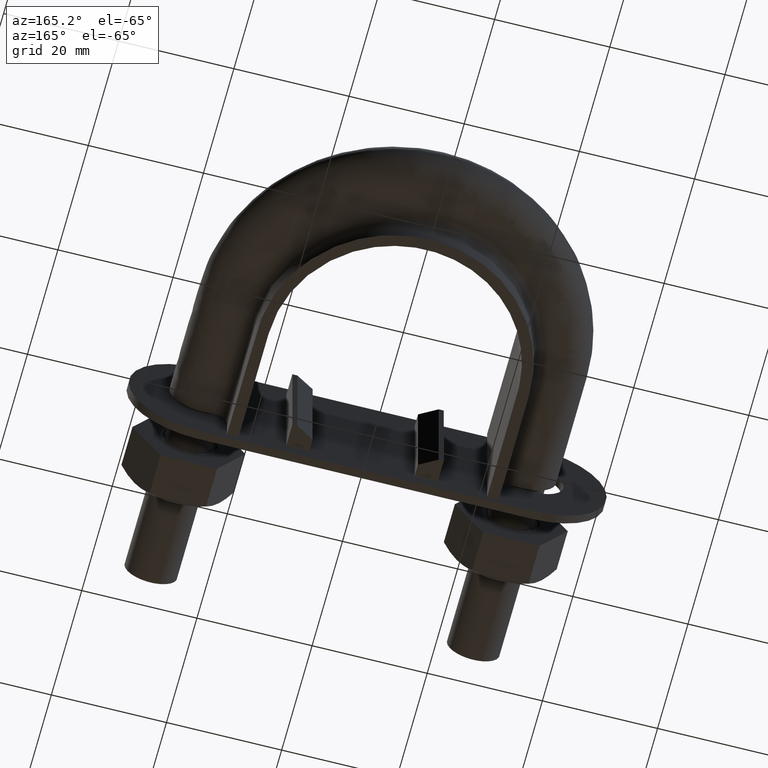
[diagram: clean part render]
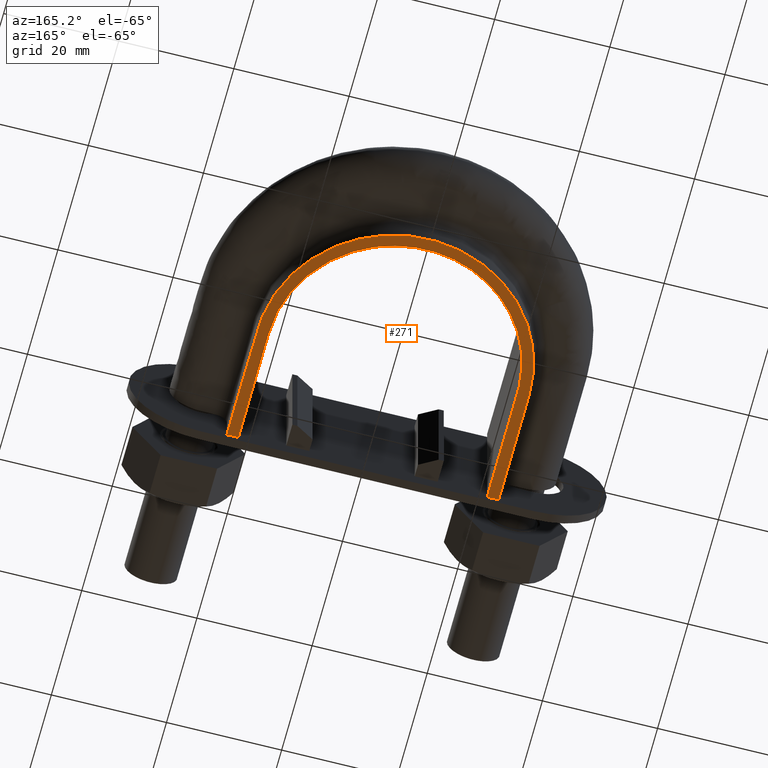
[diagram: same view with one face highlighted and labeled with its STEP entity id]
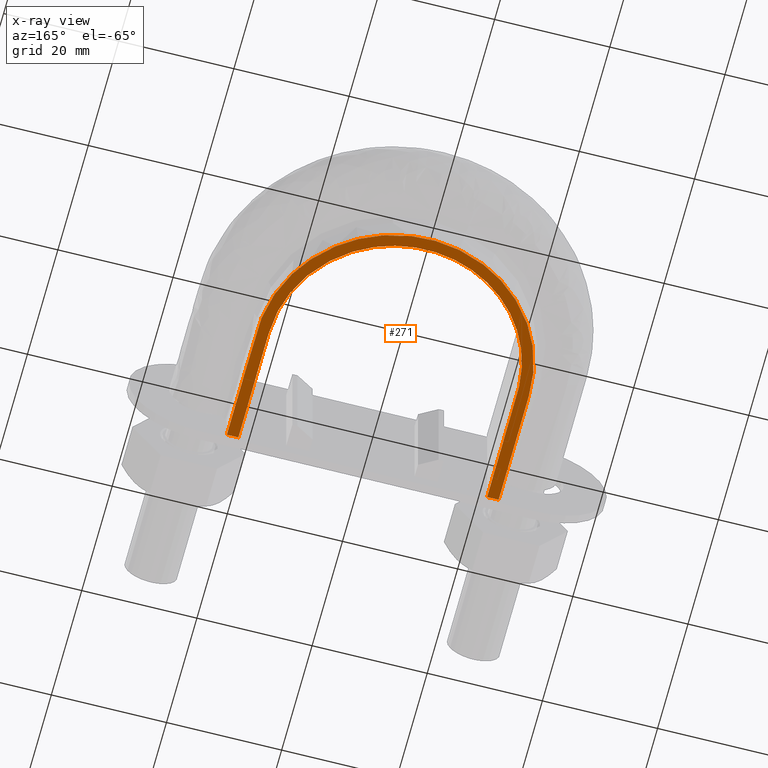
[diagram: x-ray of the same camera — body ghosted, the highlighted face saturated]
A machine part, auxiliary view. The second image highlights one B-rep face of the part: STEP entity #271.
The next image is the same camera in x-ray: the body ghosted, the highlighted face saturated — about 0% of this face is hidden behind the body in this view.
In plain terms, the highlighted planar face has unit normal (0, 0, 1).
Its self-contained STEP definition (entity closure, byte-faithful):
#271 = ADVANCED_FACE( '', ( #391 ), #392, .F. );
#391 = FACE_OUTER_BOUND( '', #649, .T. );
#392 = PLANE( '', #650 );
#649 = EDGE_LOOP( '', ( #1765, #1766, #1767, #1768 ) );
#650 = AXIS2_PLACEMENT_3D( '', #1769, #1770, #1771 );
#1765 = ORIENTED_EDGE( '', *, *, #2555, .F. );
#1766 = ORIENTED_EDGE( '', *, *, #2549, .F. );
#1767 = ORIENTED_EDGE( '', *, *, #2558, .T. );
#1768 = ORIENTED_EDGE( '', *, *, #2553, .F. );
#1769 = CARTESIAN_POINT( '', ( 40.0000000000000, 93.3000000000000, -12.5000000000000 ) );
#1770 = DIRECTION( '', ( 0.000000000000000, 0.000000000000000, 1.00000000000000 ) );
#1771 = DIRECTION( '', ( 1.22460635382238E-016, 1.00000000000000, 0.000000000000000 ) );
#2549 = EDGE_CURVE( '', #2792, #2788, #2794, .T. );
#2553 = EDGE_CURVE( '', #2800, #2802, #2803, .T. );
#2555 = EDGE_CURVE( '', #2788, #2800, #2805, .F. );
#2558 = EDGE_CURVE( '', #2792, #2802, #2808, .T. );
#2788 = VERTEX_POINT( '', #3195 );
#2792 = VERTEX_POINT( '', #3201 );
#2794 = LINE( '', #3233, #3234 );
#2800 = VERTEX_POINT( '', #3250 );
#2802 = VERTEX_POINT( '', #3253 );
#2803 = LINE( '', #3254, #3255 );
#2805 = B_SPLINE_CURVE_WITH_KNOTS( '', 3, ( #3287, #3288, #3289, #3290, #3291, #3292, #3293, #3294, #3295, #3296, #3297, #3298, #3299, #3300, #3301, #3302, #3303 ), .UNSPECIFIED., .F., .F., ( 4, 3, 1, 1, 1, 1, 1, 1, 1, 3, 4 ), ( -7.87012987012987, -7.00000000000000, -6.50000000000000, -6.00000000000000, -5.00000000000000, -4.00000000000000, -3.00000000000000, -2.00000000000000, -1.50000000000000, -1.00000000000000, -0.129870129870130 ), .UNSPECIFIED. );
#2808 = B_SPLINE_CURVE_WITH_KNOTS( '', 3, ( #3391, #3392, #3393, #3394, #3395, #3396, #3397, #3398, #3399, #3400, #3401, #3402, #3403, #3404, #3405, #3406, #3407 ), .UNSPECIFIED., .F., .F., ( 4, 3, 1, 1, 1, 1, 1, 1, 1, 3, 4 ), ( 0.129870129870130, 1.00000000000000, 1.50000000000000, 2.00000000000000, 3.00000000000000, 4.00000000000000, 5.00000000000000, 6.00000000000000, 6.50000000000000, 7.00000000000000, 7.87012987012987 ), .UNSPECIFIED. );
#3195 = CARTESIAN_POINT( '', ( -21.6000000000000, 33.3000000000000, -12.5000000000000 ) );
#3201 = CARTESIAN_POINT( '', ( -23.6000000000000, 33.3000000000000, -12.5000000000000 ) );
#3233 = CARTESIAN_POINT( '', ( -40.0000000000000, 33.3000000000000, -12.5000000000000 ) );
#3234 = VECTOR( '', #4070, 1000.00000000000 );
#3250 = CARTESIAN_POINT( '', ( 21.6000000000000, 33.3000000000000, -12.5000000000000 ) );
#3253 = CARTESIAN_POINT( '', ( 23.6000000000000, 33.3000000000000, -12.5000000000000 ) );
#3254 = CARTESIAN_POINT( '', ( -40.0000000000000, 33.3000000000000, -12.5000000000000 ) );
#3255 = VECTOR( '', #4073, 1000.00000000000 );
#3287 = CARTESIAN_POINT( '', ( 21.6000000000000, 33.3000000000000, -12.5000000000000 ) );
#3288 = CARTESIAN_POINT( '', ( 21.6000000000000, 40.0000000000000, -12.5000000000000 ) );
#3289 = CARTESIAN_POINT( '', ( 21.6000000000000, 46.7000000000000, -12.5000000000000 ) );
#3290 = CARTESIAN_POINT( '', ( 21.6000000000000, 53.4000000000000, -12.5000000000000 ) );
#3291 = CARTESIAN_POINT( '', ( 21.6000000000000, 55.2707818787651, -12.5000000000000 ) );
#3292 = CARTESIAN_POINT( '', ( 21.0928042095142, 59.0578434494473, -12.5000000000000 ) );
#3293 = CARTESIAN_POINT( '', ( 18.2026423381404, 66.0810066931108, -12.5000000000000 ) );
#3294 = CARTESIAN_POINT( '', ( 11.3044287353241, 72.9817225147667, -12.5000000000000 ) );
#3295 = CARTESIAN_POINT( '', ( 1.62470213291847E-014, 76.0091387426166, -12.5000000000000 ) );
#3296 = CARTESIAN_POINT( '', ( -11.3044287353241, 72.9817225147668, -12.5000000000000 ) );
#3297 = CARTESIAN_POINT( '', ( -18.2026423381403, 66.0810066931107, -12.5000000000000 ) );
#3298 = CARTESIAN_POINT( '', ( -21.0928042095142, 59.0578434494473, -12.5000000000000 ) );
#3299 = CARTESIAN_POINT( '', ( -21.6000000000000, 55.2707818787651, -12.5000000000000 ) );
#3300 = CARTESIAN_POINT( '', ( -21.6000000000000, 53.4000000000000, -12.5000000000000 ) );
#3301 = CARTESIAN_POINT( '', ( -21.6000000000000, 46.7000000000000, -12.5000000000000 ) );
#3302 = CARTESIAN_POINT( '', ( -21.6000000000000, 40.0000000000000, -12.5000000000000 ) );
#3303 = CARTESIAN_POINT( '', ( -21.6000000000000, 33.3000000000000, -12.5000000000000 ) );
#3391 = CARTESIAN_POINT( '', ( -23.6000000000000, 33.3000000000000, -12.5000000000000 ) );
#3392 = CARTESIAN_POINT( '', ( -23.6000000000000, 40.0000000000000, -12.5000000000000 ) );
#3393 = CARTESIAN_POINT( '', ( -23.6000000000000, 46.7000000000000, -12.5000000000000 ) );
#3394 = CARTESIAN_POINT( '', ( -23.6000000000000, 53.4000000000000, -12.5000000000000 ) );
#3395 = CARTESIAN_POINT( '', ( -23.6000000000000, 55.4494146737192, -12.5000000000000 ) );
#3396 = CARTESIAN_POINT( '', ( -23.0467901016320, 59.5795237676995, -12.5000000000000 ) );
#3397 = CARTESIAN_POINT( '', ( -19.8875260981763, 67.2564442335818, -12.5000000000000 ) );
#3398 = CARTESIAN_POINT( '', ( -12.3513075479443, 74.7943830592662, -12.5000000000000 ) );
#3399 = CARTESIAN_POINT( '', ( 1.73707751923140E-014, 78.1028084703669, -12.5000000000000 ) );
#3400 = CARTESIAN_POINT( '', ( 12.3513075479443, 74.7943830592661, -12.5000000000000 ) );
#3401 = CARTESIAN_POINT( '', ( 19.8875260981763, 67.2564442335818, -12.5000000000000 ) );
#3402 = CARTESIAN_POINT( '', ( 23.0467901016320, 59.5795237676995, -12.5000000000000 ) );
#3403 = CARTESIAN_POINT( '', ( 23.6000000000000, 55.4494146737192, -12.5000000000000 ) );
#3404 = CARTESIAN_POINT( '', ( 23.6000000000000, 53.4000000000000, -12.5000000000000 ) );
#3405 = CARTESIAN_POINT( '', ( 23.6000000000000, 46.7000000000000, -12.5000000000000 ) );
#3406 = CARTESIAN_POINT( '', ( 23.6000000000000, 40.0000000000000, -12.5000000000000 ) );
#3407 = CARTESIAN_POINT( '', ( 23.6000000000000, 33.3000000000000, -12.5000000000000 ) );
#4070 = DIRECTION( '', ( 1.00000000000000, -1.22460635382238E-016, 0.000000000000000 ) );
#4073 = DIRECTION( '', ( 1.00000000000000, -1.22460635382238E-016, 0.000000000000000 ) );